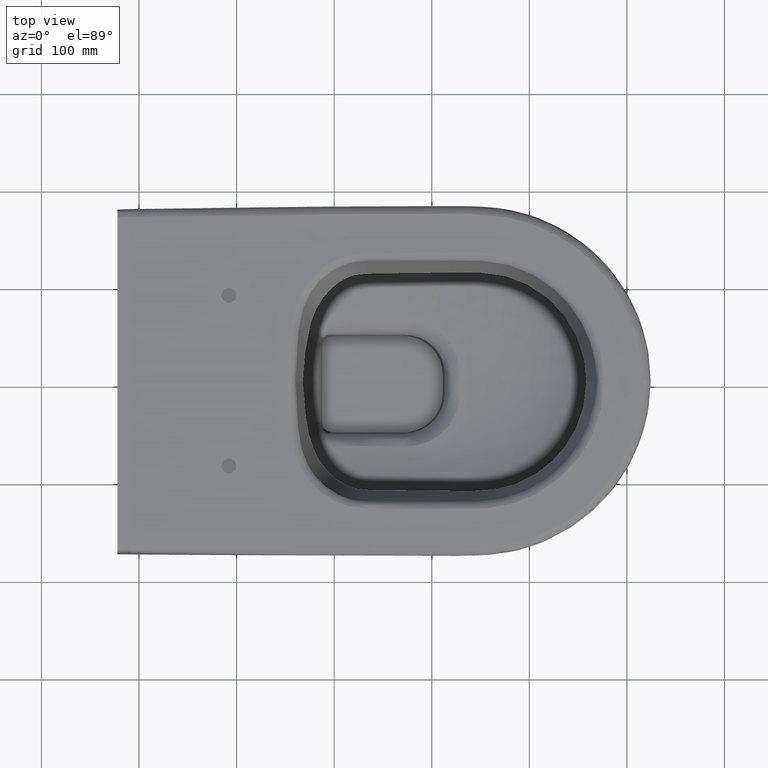
[diagram: clean part render]
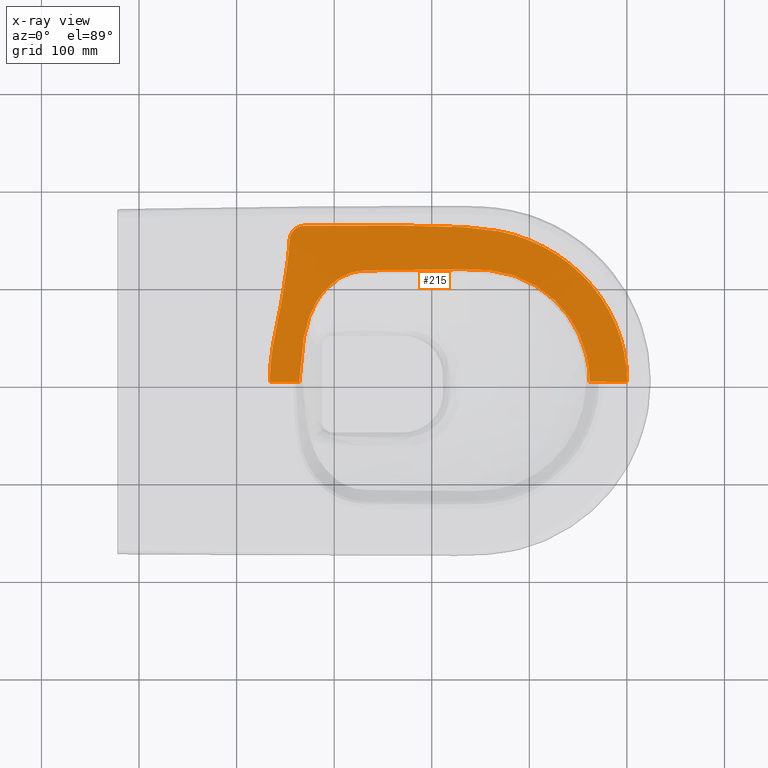
[diagram: x-ray — body ghosted, one internal face saturated and labeled with its STEP entity id]
A machine part, top view, then the same camera in x-ray: the body is ghosted and one INTERNAL B-rep face — a face not visible from any outside direction — is saturated and labeled: STEP entity #215.
In plain terms, the highlighted face is a freeform B-spline surface patch.
Its self-contained STEP definition (entity closure, byte-faithful):
#62=(
BOUNDED_CURVE()
B_SPLINE_CURVE(3,(#15350,#15351,#15352,#15353,#15354,#15355,#15356,#15357,
#15358,#15359,#15360,#15361,#15362,#15363,#15364,#15365,#15366,#15367,#15368,
#15369,#15370,#15371,#15372,#15373,#15374,#15375,#15376,#15377,#15378,#15379,
#15380,#15381,#15382,#15383),.UNSPECIFIED.,.F.,.F.)
B_SPLINE_CURVE_WITH_KNOTS((4,2,2,2,2,2,2,2,2,2,2,2,2,2,2,2,4),(0.,0.251503604023418,
0.314379505029272,0.377255406035127,0.440131307040981,0.471569257543909,
0.503007208046836,0.56588310905269,0.628759010058545,0.660196960561472,
0.691634911064399,0.754510812070254,0.785948762573181,0.817386713076108,
0.880262614081963,0.943138515087817,1.),.UNSPECIFIED.)
CURVE()
GEOMETRIC_REPRESENTATION_ITEM()
RATIONAL_B_SPLINE_CURVE((1.,1.,1.,1.,1.,1.,1.,1.,1.,1.,1.,1.,1.,1.,1.,1.,
1.,1.,1.,1.,1.,1.,1.,1.,1.,1.,1.,1.,1.,1.,1.,1.,1.,1.))
REPRESENTATION_ITEM('')
);
#109=B_SPLINE_SURFACE_WITH_KNOTS('',3,3,((#15446,#15447,#15448,#15449,#15450,
#15451,#15452,#15453,#15454,#15455),(#15456,#15457,#15458,#15459,#15460,
#15461,#15462,#15463,#15464,#15465),(#15466,#15467,#15468,#15469,#15470,
#15471,#15472,#15473,#15474,#15475),(#15476,#15477,#15478,#15479,#15480,
#15481,#15482,#15483,#15484,#15485),(#15486,#15487,#15488,#15489,#15490,
#15491,#15492,#15493,#15494,#15495),(#15496,#15497,#15498,#15499,#15500,
#15501,#15502,#15503,#15504,#15505),(#15506,#15507,#15508,#15509,#15510,
#15511,#15512,#15513,#15514,#15515),(#15516,#15517,#15518,#15519,#15520,
#15521,#15522,#15523,#15524,#15525),(#15526,#15527,#15528,#15529,#15530,
#15531,#15532,#15533,#15534,#15535),(#15536,#15537,#15538,#15539,#15540,
#15541,#15542,#15543,#15544,#15545),(#15546,#15547,#15548,#15549,#15550,
#15551,#15552,#15553,#15554,#15555),(#15556,#15557,#15558,#15559,#15560,
#15561,#15562,#15563,#15564,#15565),(#15566,#15567,#15568,#15569,#15570,
#15571,#15572,#15573,#15574,#15575),(#15576,#15577,#15578,#15579,#15580,
#15581,#15582,#15583,#15584,#15585),(#15586,#15587,#15588,#15589,#15590,
#15591,#15592,#15593,#15594,#15595),(#15596,#15597,#15598,#15599,#15600,
#15601,#15602,#15603,#15604,#15605),(#15606,#15607,#15608,#15609,#15610,
#15611,#15612,#15613,#15614,#15615),(#15616,#15617,#15618,#15619,#15620,
#15621,#15622,#15623,#15624,#15625),(#15626,#15627,#15628,#15629,#15630,
#15631,#15632,#15633,#15634,#15635),(#15636,#15637,#15638,#15639,#15640,
#15641,#15642,#15643,#15644,#15645),(#15646,#15647,#15648,#15649,#15650,
#15651,#15652,#15653,#15654,#15655),(#15656,#15657,#15658,#15659,#15660,
#15661,#15662,#15663,#15664,#15665),(#15666,#15667,#15668,#15669,#15670,
#15671,#15672,#15673,#15674,#15675),(#15676,#15677,#15678,#15679,#15680,
#15681,#15682,#15683,#15684,#15685),(#15686,#15687,#15688,#15689,#15690,
#15691,#15692,#15693,#15694,#15695),(#15696,#15697,#15698,#15699,#15700,
#15701,#15702,#15703,#15704,#15705),(#15706,#15707,#15708,#15709,#15710,
#15711,#15712,#15713,#15714,#15715),(#15716,#15717,#15718,#15719,#15720,
#15721,#15722,#15723,#15724,#15725),(#15726,#15727,#15728,#15729,#15730,
#15731,#15732,#15733,#15734,#15735),(#15736,#15737,#15738,#15739,#15740,
#15741,#15742,#15743,#15744,#15745),(#15746,#15747,#15748,#15749,#15750,
#15751,#15752,#15753,#15754,#15755),(#15756,#15757,#15758,#15759,#15760,
#15761,#15762,#15763,#15764,#15765),(#15766,#15767,#15768,#15769,#15770,
#15771,#15772,#15773,#15774,#15775),(#15776,#15777,#15778,#15779,#15780,
#15781,#15782,#15783,#15784,#15785),(#15786,#15787,#15788,#15789,#15790,
#15791,#15792,#15793,#15794,#15795),(#15796,#15797,#15798,#15799,#15800,
#15801,#15802,#15803,#15804,#15805),(#15806,#15807,#15808,#15809,#15810,
#15811,#15812,#15813,#15814,#15815),(#15816,#15817,#15818,#15819,#15820,
#15821,#15822,#15823,#15824,#15825),(#15826,#15827,#15828,#15829,#15830,
#15831,#15832,#15833,#15834,#15835),(#15836,#15837,#15838,#15839,#15840,
#15841,#15842,#15843,#15844,#15845),(#15846,#15847,#15848,#15849,#15850,
#15851,#15852,#15853,#15854,#15855),(#15856,#15857,#15858,#15859,#15860,
#15861,#15862,#15863,#15864,#15865),(#15866,#15867,#15868,#15869,#15870,
#15871,#15872,#15873,#15874,#15875),(#15876,#15877,#15878,#15879,#15880,
#15881,#15882,#15883,#15884,#15885),(#15886,#15887,#15888,#15889,#15890,
#15891,#15892,#15893,#15894,#15895),(#15896,#15897,#15898,#15899,#15900,
#15901,#15902,#15903,#15904,#15905),(#15906,#15907,#15908,#15909,#15910,
#15911,#15912,#15913,#15914,#15915),(#15916,#15917,#15918,#15919,#15920,
#15921,#15922,#15923,#15924,#15925),(#15926,#15927,#15928,#15929,#15930,
#15931,#15932,#15933,#15934,#15935),(#15936,#15937,#15938,#15939,#15940,
#15941,#15942,#15943,#15944,#15945),(#15946,#15947,#15948,#15949,#15950,
#15951,#15952,#15953,#15954,#15955),(#15956,#15957,#15958,#15959,#15960,
#15961,#15962,#15963,#15964,#15965),(#15966,#15967,#15968,#15969,#15970,
#15971,#15972,#15973,#15974,#15975),(#15976,#15977,#15978,#15979,#15980,
#15981,#15982,#15983,#15984,#15985),(#15986,#15987,#15988,#15989,#15990,
#15991,#15992,#15993,#15994,#15995),(#15996,#15997,#15998,#15999,#16000,
#16001,#16002,#16003,#16004,#16005)),.UNSPECIFIED.,.F.,.F.,.F.,(4,2,2,2,
2,2,2,2,2,2,2,2,2,2,2,2,2,2,2,2,2,2,2,2,2,2,2,4),(4,3,3,4),(0.,0.0625,0.09375,
0.125,0.15625,0.1875,0.25,0.28125,0.3125,0.3203125,0.328125,0.34375,0.375,
0.5,0.5625,0.59375,0.625,0.65625,0.6875,0.75,0.78125,0.8125,0.875,0.90625,
0.9375,0.96875,0.984375,1.),(0.,0.88316741575458,0.941642529238111,1.),
 .UNSPECIFIED.);
#215=ADVANCED_FACE('',(#293),#109,.F.);
#293=FACE_OUTER_BOUND('',#372,.T.);
#372=EDGE_LOOP('',(#721,#722,#723,#724,#725,#726,#727));
#721=ORIENTED_EDGE('',*,*,#1016,.F.);
#722=ORIENTED_EDGE('',*,*,#1105,.F.);
#723=ORIENTED_EDGE('',*,*,#1106,.F.);
#724=ORIENTED_EDGE('',*,*,#1019,.F.);
#725=ORIENTED_EDGE('',*,*,#1093,.T.);
#726=ORIENTED_EDGE('',*,*,#1107,.F.);
#727=ORIENTED_EDGE('',*,*,#1108,.F.);
#845=VERTEX_POINT('',#3459);
#868=VERTEX_POINT('',#6172);
#869=VERTEX_POINT('',#6173);
#871=VERTEX_POINT('',#6229);
#914=VERTEX_POINT('',#13129);
#919=VERTEX_POINT('',#15384);
#920=VERTEX_POINT('',#15415);
#1016=EDGE_CURVE('',#868,#869,#1196,.T.);
#1019=EDGE_CURVE('',#845,#871,#1199,.T.);
#1093=EDGE_CURVE('',#845,#914,#1254,.T.);
#1105=EDGE_CURVE('',#919,#868,#62,.T.);
#1106=EDGE_CURVE('',#871,#919,#1260,.T.);
#1107=EDGE_CURVE('',#920,#914,#1261,.T.);
#1108=EDGE_CURVE('',#869,#920,#1262,.T.);
#1196=B_SPLINE_CURVE_WITH_KNOTS('',3,(#6154,#6155,#6156,#6157,#6158,#6159,
#6160,#6161,#6162,#6163,#6164,#6165,#6166,#6167,#6168,#6169,#6170,#6171),
 .UNSPECIFIED.,.F.,.F.,(4,3,3,2,3,3,4),(0.,0.115384615384615,0.20414201183432,
0.541644777999624,0.79585798816568,0.884615384615385,1.),.UNSPECIFIED.);
#1199=B_SPLINE_CURVE_WITH_KNOTS('',3,(#6211,#6212,#6213,#6214,#6215,#6216,
#6217,#6218,#6219,#6220,#6221,#6222,#6223,#6224,#6225,#6226,#6227,#6228),
 .UNSPECIFIED.,.F.,.F.,(4,3,3,2,3,3,4),(0.,0.115384615384615,0.20414201183432,
0.493718662371066,0.79585798816568,0.884615384615385,1.),.UNSPECIFIED.);
#1254=B_SPLINE_CURVE_WITH_KNOTS('',3,(#13130,#13131,#13132,#13133,#13134,
#13135,#13136,#13137,#13138,#13139,#13140,#13141,#13142,#13143,#13144,#13145),
 .UNSPECIFIED.,.F.,.F.,(4,2,2,2,2,2,2,4),(0.,0.25,0.375,0.5,0.625,0.75,
0.875,1.),.UNSPECIFIED.);
#1260=B_SPLINE_CURVE_WITH_KNOTS('',3,(#15385,#15386,#15387,#15388,#15389,
#15390,#15391,#15392,#15393,#15394,#15395,#15396,#15397,#15398,#15399,#15400,
#15401,#15402,#15403,#15404,#15405,#15406,#15407,#15408),.UNSPECIFIED.,
 .F.,.F.,(4,2,2,2,2,2,2,2,2,2,2,4),(0.,0.25,0.375,0.499999999999999,0.5625,
0.625,0.6875,0.75,0.8125,0.875,0.9375,1.),.UNSPECIFIED.);
#1261=B_SPLINE_CURVE_WITH_KNOTS('',3,(#15409,#15410,#15411,#15412,#15413,
#15414),.UNSPECIFIED.,.F.,.F.,(4,2,4),(0.,0.5,1.),.UNSPECIFIED.);
#1262=B_SPLINE_CURVE_WITH_KNOTS('',3,(#15416,#15417,#15418,#15419,#15420,
#15421,#15422,#15423,#15424,#15425,#15426,#15427,#15428,#15429,#15430,#15431,
#15432,#15433,#15434,#15435,#15436,#15437,#15438,#15439,#15440,#15441,#15442,
#15443,#15444,#15445),.UNSPECIFIED.,.F.,.F.,(4,2,2,2,2,2,2,2,2,2,2,2,2,
2,4),(0.,0.0625,0.125,0.1875,0.25,0.3125,0.375,0.4375,0.5,0.625,0.6875,
0.75,0.875,0.9375,1.),.UNSPECIFIED.);
#3459=CARTESIAN_POINT('',(133.981603169878,-1.46156223209168E-12,-61.8724775054971));
#6154=CARTESIAN_POINT('',(450.177745465611,7.57622266924505E-14,-47.9961749465529));
#6155=CARTESIAN_POINT('',(452.381173468565,7.57622266924505E-14,-48.1909007817974));
#6156=CARTESIAN_POINT('',(454.584601471519,7.57622266924505E-14,-48.3856266170418));
#6157=CARTESIAN_POINT('',(456.788029474474,7.57622266924505E-14,-48.5803524522862));
#6158=CARTESIAN_POINT('',(458.482974092131,7.57622266924505E-14,-48.7301415563204));
#6159=CARTESIAN_POINT('',(460.177918709788,7.57622266924505E-14,-48.8799306603546));
#6160=CARTESIAN_POINT('',(461.872863327445,7.57622266924505E-14,-49.0297197643888));
#6161=CARTESIAN_POINT('',(468.317943059819,7.57622266924505E-14,-49.5992975007255));
#6162=CARTESIAN_POINT('',(474.763022792489,-1.13265245706845E-14,-50.1688752337152));
#6163=CARTESIAN_POINT('',(486.062653577655,-1.13265245706845E-14,-51.1674692517205));
#6164=CARTESIAN_POINT('',(490.917204630089,-8.39108954032736E-14,-51.5964855374469));
#6165=CARTESIAN_POINT('',(495.771755682584,-8.39108954032736E-14,-52.0255018224822));
#6166=CARTESIAN_POINT('',(497.466700300412,-8.39108954032736E-14,-52.1752909245882));
#6167=CARTESIAN_POINT('',(499.161644918239,-8.39108954032736E-14,-52.3250800266942));
#6168=CARTESIAN_POINT('',(500.856589536067,-8.39108954032736E-14,-52.4748691288002));
#6169=CARTESIAN_POINT('',(503.060017539243,-8.39108954032736E-14,-52.669594961538));
#6170=CARTESIAN_POINT('',(505.263445542419,-8.39108954032736E-14,-52.8643207942758));
#6171=CARTESIAN_POINT('',(507.466873545594,-8.39108954032736E-14,-53.0590466270136));
#6172=CARTESIAN_POINT('',(461.872306282295,4.33229251016771E-7,-49.030005531108));
#6173=CARTESIAN_POINT('',(500.272433144328,0.,-52.4233294735798));
#6211=CARTESIAN_POINT('',(130.150190288609,1.08626588044995E-12,-62.2110686089655));
#6212=CARTESIAN_POINT('',(131.795357319102,1.08626588044995E-12,-62.0656812708091));
#6213=CARTESIAN_POINT('',(133.440524349596,1.08626588044995E-12,-61.9202939326526));
#6214=CARTESIAN_POINT('',(135.08569138009,1.08626588044995E-12,-61.7749065944962));
#6215=CARTESIAN_POINT('',(136.35120448047,1.08626588044995E-12,-61.6630701805298));
#6216=CARTESIAN_POINT('',(137.616717580849,1.08626588044995E-12,-61.5512337665633));
#6217=CARTESIAN_POINT('',(138.882230681229,1.08626588044995E-12,-61.4393973525968));
#6218=CARTESIAN_POINT('',(143.011047652849,1.08626588044995E-12,-61.0745239396773));
#6219=CARTESIAN_POINT('',(147.13986462447,1.41952175244824E-12,-60.7096505267578));
#6220=CARTESIAN_POINT('',(155.576618627003,1.41952175244824E-12,-59.9640744336482));
#6221=CARTESIAN_POINT('',(159.884555657916,9.05319484867722E-13,-59.583371753458));
#6222=CARTESIAN_POINT('',(164.192492688828,9.05319484867722E-13,-59.2026690732678));
#6223=CARTESIAN_POINT('',(165.458005789208,9.05319484867722E-13,-59.0908326593014));
#6224=CARTESIAN_POINT('',(166.723518889588,9.05319484867722E-13,-58.9789962453349));
#6225=CARTESIAN_POINT('',(167.989031989968,9.05319484867722E-13,-58.8671598313685));
#6226=CARTESIAN_POINT('',(169.634199020461,9.05319484867722E-13,-58.7217724932121));
#6227=CARTESIAN_POINT('',(171.279366050955,9.05319484867722E-13,-58.5763851550557));
#6228=CARTESIAN_POINT('',(172.924533081449,9.05319484867722E-13,-58.4309978168994));
#6229=CARTESIAN_POINT('',(164.192492688812,-6.85374892285888E-14,-59.2026690730886));
#13129=CARTESIAN_POINT('',(154.332140645237,146.128464908098,-62.727050664204));
#13130=CARTESIAN_POINT('',(133.981603171689,7.52891212390974E-13,-61.8724775053725));
#13131=CARTESIAN_POINT('',(133.981603171731,12.3888357172841,-61.8724775053698));
#13132=CARTESIAN_POINT('',(135.054700914793,24.6400660773289,-61.7776452959022));
#13133=CARTESIAN_POINT('',(138.180705123229,42.8224662094551,-61.5013928409807));
#13134=CARTESIAN_POINT('',(139.337203486572,48.8685840912626,-61.399190319587));
#13135=CARTESIAN_POINT('',(141.727700353688,60.9508818649982,-61.1879364043722));
#13136=CARTESIAN_POINT('',(143.018335861515,66.9780568530219,-61.0574871453678));
#13137=CARTESIAN_POINT('',(145.424080248725,79.061414449264,-60.9296877570846));
#13138=CARTESIAN_POINT('',(146.471143726214,85.1309579121908,-60.9291165949745));
#13139=CARTESIAN_POINT('',(148.541804674364,97.274128534275,-61.0172116324564));
#13140=CARTESIAN_POINT('',(149.545486696588,103.35132568007,-61.1080947918189));
#13141=CARTESIAN_POINT('',(151.371539420742,115.538106877104,-61.3908072558053));
#13142=CARTESIAN_POINT('',(152.179374290009,121.639347873393,-61.5833387973119));
#13143=CARTESIAN_POINT('',(153.422915580464,133.871535699461,-62.0797438097208));
#13144=CARTESIAN_POINT('',(153.898213579542,139.999016748434,-62.3807547388685));
#13145=CARTESIAN_POINT('',(154.332255415033,146.128296567135,-62.7270341507854));
#15350=CARTESIAN_POINT('',(234.276168320142,114.282111420144,-56.8584473894305));
#15351=CARTESIAN_POINT('',(259.005456909698,114.627960351665,-56.0322992095631));
#15352=CARTESIAN_POINT('',(283.737096440742,114.988340584999,-55.2088647162481));
#15353=CARTESIAN_POINT('',(314.649333653689,115.393387514407,-54.1683426783558));
#15354=CARTESIAN_POINT('',(320.8313189273,115.462583465693,-53.9590708490787));
#15355=CARTESIAN_POINT('',(333.194862495586,115.520937681368,-53.5365925403051));
#15356=CARTESIAN_POINT('',(339.384238989448,115.547387460469,-53.3255647471158));
#15357=CARTESIAN_POINT('',(351.697702156786,115.164765448196,-52.8970101026336));
#15358=CARTESIAN_POINT('',(357.816060600627,114.750429397478,-52.6815296565188));
#15359=CARTESIAN_POINT('',(366.906447136143,113.50061148929,-52.3724371628919));
#15360=CARTESIAN_POINT('',(369.921621797028,112.976915926445,-52.2709965999689));
#15361=CARTESIAN_POINT('',(375.915229375892,111.638818459297,-52.0662722171677));
#15362=CARTESIAN_POINT('',(378.904642966097,110.828778839527,-51.9630662778478));
#15363=CARTESIAN_POINT('',(387.758886808366,108.020450304587,-51.6559683055121));
#15364=CARTESIAN_POINT('',(393.405754315116,105.662391022587,-51.4558972054004));
#15365=CARTESIAN_POINT('',(404.269459040077,100.129065984222,-51.0768128305692));
#15366=CARTESIAN_POINT('',(409.478076902946,96.9368240223512,-50.8957748028251));
#15367=CARTESIAN_POINT('',(416.942517084866,91.4871095998169,-50.6315193828788));
#15368=CARTESIAN_POINT('',(419.380523698414,89.5531033756422,-50.5446091537245));
#15369=CARTESIAN_POINT('',(424.052752208158,85.5309314924895,-50.3779660221292));
#15370=CARTESIAN_POINT('',(426.295203732373,83.4357094769672,-50.2979332027611));
#15371=CARTESIAN_POINT('',(432.749811265201,76.9027001488715,-50.0684343882181));
#15372=CARTESIAN_POINT('',(436.696451851208,72.2231626191034,-49.9300538371797));
#15373=CARTESIAN_POINT('',(442.07898859806,64.7173831704326,-49.7390083065504));
#15374=CARTESIAN_POINT('',(443.789525791153,62.1210642397607,-49.6779427936457));
#15375=CARTESIAN_POINT('',(446.972601319865,56.8305722821464,-49.5633418889382));
#15376=CARTESIAN_POINT('',(448.447508133808,54.1363720570039,-49.5097650628526));
#15377=CARTESIAN_POINT('',(452.532141081645,45.9114467661792,-49.3626967834927));
#15378=CARTESIAN_POINT('',(454.80481984778,40.2373432571283,-49.2833796040344));
#15379=CARTESIAN_POINT('',(458.44585968574,28.5042314150964,-49.1531460897778));
#15380=CARTESIAN_POINT('',(459.821077578441,22.4101087051208,-49.102422818169));
#15381=CARTESIAN_POINT('',(461.484195371256,10.9170158567151,-49.0428476184234));
#15382=CARTESIAN_POINT('',(461.867088644906,5.46543318264528,-49.0367890407327));
#15383=CARTESIAN_POINT('',(461.871901126379,-7.81074197507559E-7,-49.0303198363131));
#15384=CARTESIAN_POINT('',(234.276168320142,114.282111420144,-56.8584473894305));
#15385=CARTESIAN_POINT('',(164.192492688802,1.24301466450488E-12,-59.2026690729692));
#15386=CARTESIAN_POINT('',(164.882481749474,12.5011742242617,-59.1416930924461));
#15387=CARTESIAN_POINT('',(165.795753135881,24.9834682169075,-59.0609851197282));
#15388=CARTESIAN_POINT('',(168.46473200571,43.5947425612909,-58.8251210851379));
#15389=CARTESIAN_POINT('',(169.49749924928,49.844659814381,-58.7256198002109));
#15390=CARTESIAN_POINT('',(172.547545192973,61.8913516116376,-58.4747032087598));
#15391=CARTESIAN_POINT('',(174.548027116603,67.7537170052208,-58.3652819279311));
#15392=CARTESIAN_POINT('',(178.385823498493,76.2728797096802,-58.2054341155128));
#15393=CARTESIAN_POINT('',(179.812883486396,79.08223747742,-58.1528717022945));
#15394=CARTESIAN_POINT('',(182.995543191076,84.4665884579748,-58.0439947657345));
#15395=CARTESIAN_POINT('',(184.768446175758,87.011469970057,-57.9852764519197));
#15396=CARTESIAN_POINT('',(188.609760936632,91.8600644258356,-57.8657817158455));
#15397=CARTESIAN_POINT('',(190.656968586748,94.179174614956,-57.8071069679044));
#15398=CARTESIAN_POINT('',(194.997146420076,98.6223455083929,-57.6966798114857));
#15399=CARTESIAN_POINT('',(197.321899067289,100.746517760986,-57.643222216141));
#15400=CARTESIAN_POINT('',(202.232709707508,104.563705262965,-57.5358194046776));
#15401=CARTESIAN_POINT('',(204.818829834616,106.256502974246,-57.4812913098924));
#15402=CARTESIAN_POINT('',(210.242452703298,109.22246300622,-57.375935758237));
#15403=CARTESIAN_POINT('',(213.076820543702,110.581697761825,-57.3317870756542));
#15404=CARTESIAN_POINT('',(218.9515296675,112.562925900249,-57.2345967911108));
#15405=CARTESIAN_POINT('',(221.958932250043,113.184594198142,-57.1894117566557));
#15406=CARTESIAN_POINT('',(228.055327897485,114.101001966906,-57.0574507428729));
#15407=CARTESIAN_POINT('',(231.158063177932,114.238502432484,-56.9626159556061));
#15408=CARTESIAN_POINT('',(234.276168114404,114.282111417267,-56.8584473963037));
#15409=CARTESIAN_POINT('',(169.28853843182,160.266600599074,-63.0090662225787));
#15410=CARTESIAN_POINT('',(165.489987318485,160.204979602771,-63.1482768284884));
#15411=CARTESIAN_POINT('',(161.797822168427,158.694435506631,-63.1868337320484));
#15412=CARTESIAN_POINT('',(156.319809786756,153.521339492426,-63.0829959586446));
#15413=CARTESIAN_POINT('',(154.600035052034,149.914884298374,-62.940981595337));
#15414=CARTESIAN_POINT('',(154.332025874208,146.128633251884,-62.7270671613704));
#15415=CARTESIAN_POINT('',(169.286316410782,160.266288459396,-63.009124452124));
#15416=CARTESIAN_POINT('',(500.273090436643,1.16944243869439E-9,-52.4233007695555));
#15417=CARTESIAN_POINT('',(500.276931404671,8.78554163160256,-52.4282535244285));
#15418=CARTESIAN_POINT('',(499.51265477165,17.4575877894955,-52.449265458022));
#15419=CARTESIAN_POINT('',(496.51884836642,34.5850071906268,-52.5544521126295));
#15420=CARTESIAN_POINT('',(494.276571835347,43.1036989488606,-52.6320136850285));
#15421=CARTESIAN_POINT('',(488.364213840789,59.6242040239223,-52.8348349106422));
#15422=CARTESIAN_POINT('',(484.728570809173,67.5279120693674,-52.9625272929255));
#15423=CARTESIAN_POINT('',(476.154122061736,82.6515518746599,-53.2655862585763));
#15424=CARTESIAN_POINT('',(471.171674033637,89.9249418130958,-53.439556918311));
#15425=CARTESIAN_POINT('',(460.098104744656,103.514671604567,-53.8302381478457));
#15426=CARTESIAN_POINT('',(454.063095277823,109.786687405535,-54.0506823055377));
#15427=CARTESIAN_POINT('',(441.049143216287,121.340219925907,-54.5368775903744));
#15428=CARTESIAN_POINT('',(434.009218771434,126.657074078348,-54.8014909793393));
#15429=CARTESIAN_POINT('',(419.241960335807,136.061397087839,-55.3701692472686));
#15430=CARTESIAN_POINT('',(411.560425511171,140.129323391387,-55.6725468218856));
#15431=CARTESIAN_POINT('',(395.627056547953,147.050386087291,-56.319221783869));
#15432=CARTESIAN_POINT('',(387.332751264639,149.911588015429,-56.6705172488994));
#15433=CARTESIAN_POINT('',(361.880392956531,156.609593786482,-57.7688528560064));
#15434=CARTESIAN_POINT('',(344.475644292428,158.237627227631,-58.443980642807));
#15435=CARTESIAN_POINT('',(318.215903474604,159.426251656935,-59.2254279925777));
#15436=CARTESIAN_POINT('',(309.457500935832,159.650368064091,-59.4666189434176));
#15437=CARTESIAN_POINT('',(291.938420676487,160.026821368019,-59.9364104714527));
#15438=CARTESIAN_POINT('',(283.177692641901,160.184141017567,-60.1659427270742));
#15439=CARTESIAN_POINT('',(256.89439520735,160.573548984965,-60.8415830090703));
#15440=CARTESIAN_POINT('',(239.371919822983,160.7097487968,-61.2731446088834));
#15441=CARTESIAN_POINT('',(213.087961216297,160.699028713627,-61.8965040977214));
#15442=CARTESIAN_POINT('',(204.326596960552,160.659364102492,-62.1001336530747));
#15443=CARTESIAN_POINT('',(186.803807283247,160.512789665346,-62.5004774794469));
#15444=CARTESIAN_POINT('',(178.042137383195,160.408073236844,-62.6881851581098));
#15445=CARTESIAN_POINT('',(169.284094641934,160.265976108578,-63.0091846914595));
#15446=CARTESIAN_POINT('',(173.862891570659,4.32822016051639E-13,-58.348072836971));
#15447=CARTESIAN_POINT('',(152.598233889756,7.83638796930405E-13,-60.2272814034741));
#15448=CARTESIAN_POINT('',(131.333576208853,6.63978539710451E-13,-62.1064899699777));
#15449=CARTESIAN_POINT('',(110.068918527951,6.79024096821035E-13,-63.9856985364813));
#15450=CARTESIAN_POINT('',(108.660971123079,6.80020273359899E-13,-64.1101222099834));
#15451=CARTESIAN_POINT('',(107.253023718207,6.81016449898764E-13,-64.2345458834854));
#15452=CARTESIAN_POINT('',(105.845076313335,6.82012626437629E-13,-64.3589695569875));
#15453=CARTESIAN_POINT('',(104.439961476966,6.83006798826141E-13,-64.4831429096485));
#15454=CARTESIAN_POINT('',(103.034846640596,6.84000971214654E-13,-64.6073162623096));
#15455=CARTESIAN_POINT('',(101.629731804227,6.84995143603166E-13,-64.7314896149706));
#15456=CARTESIAN_POINT('',(173.862891570671,8.86229056803603,-58.3480728369705));
#15457=CARTESIAN_POINT('',(152.59823388977,10.2922925026579,-60.2272814034736));
#15458=CARTESIAN_POINT('',(131.33357620887,11.7226544757625,-62.1064899699772));
#15459=CARTESIAN_POINT('',(110.068918527969,13.1531611422508,-63.9856985364808));
#15460=CARTESIAN_POINT('',(108.660971123097,13.2478759586827,-64.1101222099829));
#15461=CARTESIAN_POINT('',(107.253023718225,13.3425907751146,-64.2345458834849));
#15462=CARTESIAN_POINT('',(105.845076313353,13.4373055915466,-64.358969556987));
#15463=CARTESIAN_POINT('',(104.439961476984,13.5318298566803,-64.483142909648));
#15464=CARTESIAN_POINT('',(103.034846640614,13.6263541218141,-64.6073162623091));
#15465=CARTESIAN_POINT('',(101.629731804245,13.7208783869478,-64.7314896149701));
#15466=CARTESIAN_POINT('',(173.862891570684,17.7245811351982,-58.3480728369706));
#15467=CARTESIAN_POINT('',(152.598233889784,20.5845850043054,-60.2272814034714));
#15468=CARTESIAN_POINT('',(131.333576208886,23.4453089503715,-62.1064899699759));
#15469=CARTESIAN_POINT('',(110.068918527987,26.3063222832064,-63.9856985364802));
#15470=CARTESIAN_POINT('',(108.660971123115,26.4957519160609,-64.1101222099823));
#15471=CARTESIAN_POINT('',(107.253023718243,26.6851815489153,-64.2345458834845));
#15472=CARTESIAN_POINT('',(105.845076313372,26.8746111817698,-64.3589695569866));
#15473=CARTESIAN_POINT('',(104.439961477002,27.0636597120279,-64.4831429096477));
#15474=CARTESIAN_POINT('',(103.034846640633,27.2527082422861,-64.6073162623088));
#15475=CARTESIAN_POINT('',(101.629731804264,27.4417567725442,-64.7314896149698));
#15476=CARTESIAN_POINT('',(173.862891570704,31.0180169872532,-58.3480728369705));
#15477=CARTESIAN_POINT('',(152.598233889805,36.0230237582948,-60.2272814034692));
#15478=CARTESIAN_POINT('',(131.33357620891,41.0292906640178,-62.1064899699743));
#15479=CARTESIAN_POINT('',(110.068918528014,46.0360639965851,-63.9856985364794));
#15480=CARTESIAN_POINT('',(108.660971123142,46.3675658540874,-64.1101222099816));
#15481=CARTESIAN_POINT('',(107.253023718271,46.6990677115898,-64.2345458834838));
#15482=CARTESIAN_POINT('',(105.845076313399,47.0305695690921,-64.3589695569859));
#15483=CARTESIAN_POINT('',(104.43996147703,47.3614044970509,-64.4831429096471));
#15484=CARTESIAN_POINT('',(103.034846640661,47.6922394250097,-64.6073162623082));
#15485=CARTESIAN_POINT('',(101.629731804292,48.0230743529685,-64.7314896149694));
#15486=CARTESIAN_POINT('',(173.862891570711,35.4428495966322,-58.3480728369705));
#15487=CARTESIAN_POINT('',(152.598233889811,41.1618387341079,-60.2272814034679));
#15488=CARTESIAN_POINT('',(131.333576208917,46.8822677690478,-62.1064899699738));
#15489=CARTESIAN_POINT('',(110.068918528023,52.6032754744578,-63.9856985364792));
#15490=CARTESIAN_POINT('',(108.660971123152,52.982067274117,-64.1101222099814));
#15491=CARTESIAN_POINT('',(107.25302371828,53.3608590737761,-64.2345458834836));
#15492=CARTESIAN_POINT('',(105.845076313409,53.7396508734353,-64.3589695569858));
#15493=CARTESIAN_POINT('',(104.43996147704,54.1176806036329,-64.4831429096469));
#15494=CARTESIAN_POINT('',(103.034846640671,54.4957103338304,-64.6073162623081));
#15495=CARTESIAN_POINT('',(101.629731804302,54.873740064028,-64.7314896149693));
#15496=CARTESIAN_POINT('',(173.862891570724,44.3048173891968,-58.3480728369704));
#15497=CARTESIAN_POINT('',(152.598233889824,51.4537563788761,-60.2272814034664));
#15498=CARTESIAN_POINT('',(131.333576208933,58.6044952913853,-62.1064899699729));
#15499=CARTESIAN_POINT('',(110.068918528041,65.7559575624793,-63.9856985364787));
#15500=CARTESIAN_POINT('',(108.66097112317,66.2294607289408,-64.1101222099809));
#15501=CARTESIAN_POINT('',(107.253023718298,66.7029638954023,-64.2345458834832));
#15502=CARTESIAN_POINT('',(105.845076313427,67.1764670618638,-64.3589695569854));
#15503=CARTESIAN_POINT('',(104.439961477058,67.6490176145057,-64.4831429096466));
#15504=CARTESIAN_POINT('',(103.034846640689,68.1215681671476,-64.6073162623077));
#15505=CARTESIAN_POINT('',(101.629731804321,68.5941187197894,-64.7314896149689));
#15506=CARTESIAN_POINT('',(173.857819363579,48.7292891705587,-58.348521080029));
#15507=CARTESIAN_POINT('',(152.592518337215,56.5925894532944,-60.2277865005007));
#15508=CARTESIAN_POINT('',(131.327495516243,64.4585689369969,-62.1070273353085));
#15509=CARTESIAN_POINT('',(110.062547047152,72.3255265833814,-63.9862615994627));
#15510=CARTESIAN_POINT('',(108.654580388997,72.8464031838269,-64.1106869744237));
#15511=CARTESIAN_POINT('',(107.246613730842,73.3672797842724,-64.2351123493846));
#15512=CARTESIAN_POINT('',(105.838647072686,73.8881563847178,-64.3595377243456));
#15513=CARTESIAN_POINT('',(104.433513021768,74.4079850634533,-64.4837127750424));
#15514=CARTESIAN_POINT('',(103.02837897085,74.9278137421887,-64.6078878257392));
#15515=CARTESIAN_POINT('',(101.623244919932,75.4476424209242,-64.7320628764361));
#15516=CARTESIAN_POINT('',(173.867963777891,57.6661168374654,-58.3476245939118));
#15517=CARTESIAN_POINT('',(152.603949442467,66.9705719175887,-60.2267763064311));
#15518=CARTESIAN_POINT('',(131.339656901657,76.2766702052572,-62.1059526046359));
#15519=CARTESIAN_POINT('',(110.075290008964,85.5835274332252,-63.9851354734939));
#15520=CARTESIAN_POINT('',(108.667361857376,86.1997407613805,-64.1095574455374));
#15521=CARTESIAN_POINT('',(107.259433705789,86.8159540895358,-64.233979417581));
#15522=CARTESIAN_POINT('',(105.851505554201,87.4321674176911,-64.3584013896245));
#15523=CARTESIAN_POINT('',(104.446409932382,88.0471410216506,-64.4825730442501));
#15524=CARTESIAN_POINT('',(103.041314310562,88.6621146256101,-64.6067446988757));
#15525=CARTESIAN_POINT('',(101.636218688743,89.2770882295697,-64.7309163535012));
#15526=CARTESIAN_POINT('',(174.42888657466,62.1795557262776,-58.3264647947641));
#15527=CARTESIAN_POINT('',(153.2551117563,72.2103931085937,-60.2058269749135));
#15528=CARTESIAN_POINT('',(132.079901288797,82.2405708514834,-62.0852998838306));
#15529=CARTESIAN_POINT('',(110.904154805411,92.2705933308917,-63.9648108499084));
#15530=CARTESIAN_POINT('',(109.502094271218,92.9346879207319,-64.0892545454913));
#15531=CARTESIAN_POINT('',(108.100033737026,93.5987825105721,-64.2136982410743));
#15532=CARTESIAN_POINT('',(106.697973202833,94.2628771004123,-64.3381419366572));
#15533=CARTESIAN_POINT('',(105.298733393686,94.9256356364969,-64.4623352711179));
#15534=CARTESIAN_POINT('',(103.899493584539,95.5883941725816,-64.5865286055785));
#15535=CARTESIAN_POINT('',(102.500253775391,96.2511527086662,-64.7107219400391));
#15536=CARTESIAN_POINT('',(176.614684704453,70.8572541157693,-58.2468685209951));
#15537=CARTESIAN_POINT('',(155.794452343483,82.2856257537541,-60.1277076820089));
#15538=CARTESIAN_POINT('',(134.97103422894,93.7108971178127,-62.00875559434));
#15539=CARTESIAN_POINT('',(114.146430275927,105.135132068036,-63.8898662966888));
#15540=CARTESIAN_POINT('',(112.767619126784,105.891538411001,-64.0144159118951));
#15541=CARTESIAN_POINT('',(111.388807977641,106.647944753966,-64.1389655271013));
#15542=CARTESIAN_POINT('',(110.009996828499,107.404351096931,-64.2635151423076));
#15543=CARTESIAN_POINT('',(108.633959630299,108.159235669428,-64.3878141832979));
#15544=CARTESIAN_POINT('',(107.2579224321,108.914120241924,-64.5121132242882));
#15545=CARTESIAN_POINT('',(105.881885233901,109.66900481442,-64.6364122652785));
#15546=CARTESIAN_POINT('',(178.242710209391,75.0425966237925,-58.1878913466784));
#15547=CARTESIAN_POINT('',(157.685980645257,87.1447620680904,-60.0699037012212));
#15548=CARTESIAN_POINT('',(137.125104036931,99.2427534662616,-61.9521697742929));
#15549=CARTESIAN_POINT('',(116.562684497463,111.339320826111,-63.8345070752268));
#15550=CARTESIAN_POINT('',(115.201232756131,112.140242753834,-63.9591379043571));
#15551=CARTESIAN_POINT('',(113.8397810148,112.941164681557,-64.0837687334875));
#15552=CARTESIAN_POINT('',(112.478329273468,113.74208660928,-64.2083995626178));
#15553=CARTESIAN_POINT('',(111.119616558685,114.541397208187,-64.3327796541426));
#15554=CARTESIAN_POINT('',(109.760903843901,115.340707807094,-64.4571597456674));
#15555=CARTESIAN_POINT('',(108.402191129118,116.140018406,-64.5815398371922));
#15556=CARTESIAN_POINT('',(184.589896812734,86.7648163465053,-57.9585091903907));
#15557=CARTESIAN_POINT('',(165.060226344368,100.752467205373,-59.8452329732659));
#15558=CARTESIAN_POINT('',(145.523280923132,114.733053570704,-61.7323301665942));
#15559=CARTESIAN_POINT('',(125.983636115459,128.711181310563,-63.6195122094813));
#15560=CARTESIAN_POINT('',(124.689902982675,129.636682626955,-63.7444638122616));
#15561=CARTESIAN_POINT('',(123.396169849892,130.562183943347,-63.869415415042));
#15562=CARTESIAN_POINT('',(122.102436717108,131.48768525974,-63.9943670178223));
#15563=CARTESIAN_POINT('',(120.811306371694,132.4113246132,-64.119067237651));
#15564=CARTESIAN_POINT('',(119.520176026281,133.33496396666,-64.2437674574797));
#15565=CARTESIAN_POINT('',(118.229045680867,134.258603320121,-64.3684676773084));
#15566=CARTESIAN_POINT('',(190.788010814424,93.4545890807938,-57.7349925089715));
#15567=CARTESIAN_POINT('',(172.261161039721,108.515972169718,-59.6264477606456));
#15568=CARTESIAN_POINT('',(153.724708284389,123.568929730711,-61.5183380438206));
#15569=CARTESIAN_POINT('',(135.184694429107,138.618944932007,-63.4103089107454));
#15570=CARTESIAN_POINT('',(133.957147539543,139.615416644081,-63.5355775848126));
#15571=CARTESIAN_POINT('',(132.729600649979,140.611888356154,-63.6608462588799));
#15572=CARTESIAN_POINT('',(131.502053760415,141.608360068228,-63.7861149329471));
#15573=CARTESIAN_POINT('',(130.27697650192,142.602827036108,-63.9111315861652));
#15574=CARTESIAN_POINT('',(129.051899243425,143.597294003987,-64.0361482393833));
#15575=CARTESIAN_POINT('',(127.82682198493,144.591760971867,-64.1611648926014));
#15576=CARTESIAN_POINT('',(202.027395020617,100.648672745655,-57.3313572016829));
#15577=CARTESIAN_POINT('',(185.315267625562,116.85750268007,-59.231680551298));
#15578=CARTESIAN_POINT('',(168.589822371989,133.056451257826,-61.1324254149026));
#15579=CARTESIAN_POINT('',(151.859450055921,149.25195541681,-63.0331996290435));
#15580=CARTESIAN_POINT('',(150.751720759808,150.324270729542,-63.1590511786996));
#15581=CARTESIAN_POINT('',(149.643991463695,151.396586042274,-63.2849027283556));
#15582=CARTESIAN_POINT('',(148.536262167582,152.468901355006,-63.4107542780117));
#15583=CARTESIAN_POINT('',(147.430761448405,153.539059338161,-63.5363526341647));
#15584=CARTESIAN_POINT('',(146.325260729228,154.609217321316,-63.6619509903177));
#15585=CARTESIAN_POINT('',(145.219760010051,155.67937530447,-63.7875493464707));
#15586=CARTESIAN_POINT('',(206.093224451114,102.575631054392,-57.1855825578202));
#15587=CARTESIAN_POINT('',(190.037049695514,119.09015269735,-59.0891539921915));
#15588=CARTESIAN_POINT('',(173.966295514653,135.594421381529,-60.9931242395684));
#15589=CARTESIAN_POINT('',(157.890150560606,152.095120234105,-62.897099323699));
#15590=CARTESIAN_POINT('',(156.825738101772,153.187642694456,-63.0231628051276));
#15591=CARTESIAN_POINT('',(155.761325642938,154.280165154807,-63.1492262865563));
#15592=CARTESIAN_POINT('',(154.696913184103,155.372687615158,-63.2752897679849));
#15593=CARTESIAN_POINT('',(153.634642155549,156.463012092332,-63.4010996295371));
#15594=CARTESIAN_POINT('',(152.572371126994,157.553336569506,-63.5269094910893));
#15595=CARTESIAN_POINT('',(151.510100098439,158.64366104668,-63.6527193526416));
#15596=CARTESIAN_POINT('',(214.616491811066,105.348654599013,-56.881217149877));
#15597=CARTESIAN_POINT('',(199.933245348694,122.298163779012,-58.7917567112114));
#15598=CARTESIAN_POINT('',(185.232834759887,139.236828709492,-60.7025811050601));
#15599=CARTESIAN_POINT('',(170.526089099272,156.171732661957,-62.6133343366865));
#15600=CARTESIAN_POINT('',(169.552345496262,157.293004136411,-62.7398466038572));
#15601=CARTESIAN_POINT('',(168.578601893252,158.414275610866,-62.8663588710278));
#15602=CARTESIAN_POINT('',(167.604858290242,159.53554708532,-62.9928711381985));
#15603=CARTESIAN_POINT('',(166.633073706049,160.654562738107,-63.1191288826065));
#15604=CARTESIAN_POINT('',(165.661289121856,161.773578390895,-63.2453866270145));
#15605=CARTESIAN_POINT('',(164.689504537663,162.892594043683,-63.3716443714225));
#15606=CARTESIAN_POINT('',(219.068817165521,106.189357552829,-56.7224228937261));
#15607=CARTESIAN_POINT('',(205.102310018824,123.267751128374,-58.6366119994428));
#15608=CARTESIAN_POINT('',(191.117490904595,140.335210009561,-60.5510159786886));
#15609=CARTESIAN_POINT('',(177.1258965963,157.398878005207,-62.4653074079154));
#15610=CARTESIAN_POINT('',(176.19950364928,158.528675034277,-62.5920539415485));
#15611=CARTESIAN_POINT('',(175.27311070226,159.658472063346,-62.7188004751816));
#15612=CARTESIAN_POINT('',(174.346717755239,160.788269092416,-62.8455470088147));
#15613=CARTESIAN_POINT('',(173.422188564972,161.915793147746,-62.9720385483779));
#15614=CARTESIAN_POINT('',(172.497659374704,163.043317203075,-63.0985300879411));
#15615=CARTESIAN_POINT('',(171.573130184436,164.170841258405,-63.2250216275042));
#15616=CARTESIAN_POINT('',(224.685539442633,106.525577959702,-56.5248648056892));
#15617=CARTESIAN_POINT('',(211.619222429926,123.647025756146,-58.4440151886849));
#15618=CARTESIAN_POINT('',(198.532706427246,140.757184782976,-60.363159562332));
#15619=CARTESIAN_POINT('',(185.438759890796,157.863456108293,-62.2820843463588));
#15620=CARTESIAN_POINT('',(184.571800811455,158.99607393271,-62.4091376575551));
#15621=CARTESIAN_POINT('',(183.704841732115,160.128691757127,-62.5361909687515));
#15622=CARTESIAN_POINT('',(182.837882652774,161.261309581544,-62.6632442799478));
#15623=CARTESIAN_POINT('',(181.972667758602,162.391648757225,-62.7900419798861));
#15624=CARTESIAN_POINT('',(181.107452864429,163.521987932906,-62.9168396798243));
#15625=CARTESIAN_POINT('',(180.242237970257,164.652327108586,-63.0436373797626));
#15626=CARTESIAN_POINT('',(225.802406880122,106.540069510783,-56.485161058187));
#15627=CARTESIAN_POINT('',(212.915842501986,123.662232991595,-58.4052133973804));
#15628=CARTESIAN_POINT('',(200.008919356708,140.773202757711,-60.3252414727029));
#15629=CARTESIAN_POINT('',(187.094510074182,157.880325749015,-62.2450423687073));
#15630=CARTESIAN_POINT('',(186.23943827817,159.012999962815,-62.3721536878718));
#15631=CARTESIAN_POINT('',(185.384366482158,160.145674176614,-62.4992650070362));
#15632=CARTESIAN_POINT('',(184.529294686146,161.278348390414,-62.6263763262007));
#15633=CARTESIAN_POINT('',(183.67594315996,162.40874384203,-62.7532319174042));
#15634=CARTESIAN_POINT('',(182.822591633774,163.539139293647,-62.8800875086077));
#15635=CARTESIAN_POINT('',(181.969240107588,164.669534745264,-63.0069430998113));
#15636=CARTESIAN_POINT('',(228.006843729692,106.575563941891,-56.4059259174903));
#15637=CARTESIAN_POINT('',(215.476493114696,123.701322052227,-58.3276083663075));
#15638=CARTESIAN_POINT('',(202.925781042492,140.816309208793,-60.2492794969563));
#15639=CARTESIAN_POINT('',(190.367581806626,157.927608100177,-62.1707330381787));
#15640=CARTESIAN_POINT('',(189.536094919354,159.060558803153,-62.2979537801037));
#15641=CARTESIAN_POINT('',(188.704608032082,160.193509506128,-62.4251745220288));
#15642=CARTESIAN_POINT('',(187.873121144809,161.326460209104,-62.5523952639538));
#15643=CARTESIAN_POINT('',(187.04330707824,162.457131593644,-62.6793600577765));
#15644=CARTESIAN_POINT('',(186.21349301167,163.587802978184,-62.8063248515992));
#15645=CARTESIAN_POINT('',(185.383678945101,164.718474362724,-62.9332896454219));
#15646=CARTESIAN_POINT('',(229.10368545763,106.593233887308,-56.366503659691));
#15647=CARTESIAN_POINT('',(216.750572868717,123.72078225771,-58.2889965334334));
#15648=CARTESIAN_POINT('',(204.377097512503,140.83776998424,-60.2114849010145));
#15649=CARTESIAN_POINT('',(191.996134485344,157.951148277649,-62.1337605393988));
#15650=CARTESIAN_POINT('',(191.176382527636,159.084236659243,-62.2610357129344));
#15651=CARTESIAN_POINT('',(190.356630569928,160.217325040836,-62.38831088647));
#15652=CARTESIAN_POINT('',(189.536878612221,161.35041342243,-62.5155860600056));
#15653=CARTESIAN_POINT('',(188.718775866385,162.481222208601,-62.642605175931));
#15654=CARTESIAN_POINT('',(187.900673120549,163.612030994771,-62.7696242918565));
#15655=CARTESIAN_POINT('',(187.082570374714,164.742839780942,-62.8966434077819));
#15656=CARTESIAN_POINT('',(232.38617169788,106.646140531331,-56.248531918095));
#15657=CARTESIAN_POINT('',(220.563474037719,123.779051423039,-58.1734482088712));
#15658=CARTESIAN_POINT('',(208.72040972451,140.902030900258,-60.0983814693397));
#15659=CARTESIAN_POINT('',(196.869856222142,158.021636748678,-62.0231168050188));
#15660=CARTESIAN_POINT('',(196.085223038748,159.155137460912,-62.1505548367802));
#15661=CARTESIAN_POINT('',(195.300589855353,160.288638173146,-62.2779928685417));
#15662=CARTESIAN_POINT('',(194.515956671959,161.42213888538,-62.4054309003031));
#15663=CARTESIAN_POINT('',(193.732902046992,162.553359172646,-62.5326125468093));
#15664=CARTESIAN_POINT('',(192.949847422026,163.684579459913,-62.6597941933154));
#15665=CARTESIAN_POINT('',(192.166792797059,164.815799747179,-62.7869758398216));
#15666=CARTESIAN_POINT('',(234.56452520743,106.681286159729,-56.170250573265));
#15667=CARTESIAN_POINT('',(223.093826121561,123.81776225158,-58.0967725524339));
#15668=CARTESIAN_POINT('',(211.602757886726,140.944724316478,-60.0233272080616));
#15669=CARTESIAN_POINT('',(200.104199458837,158.068469089594,-61.9496941102222));
#15670=CARTESIAN_POINT('',(199.342872108016,159.202243842839,-62.0772401691068));
#15671=CARTESIAN_POINT('',(198.581544757195,160.336018596084,-62.2047862279913));
#15672=CARTESIAN_POINT('',(197.820217406374,161.469793349328,-62.3323322868759));
#15673=CARTESIAN_POINT('',(197.060421726315,162.601287126278,-62.4596217431716));
#15674=CARTESIAN_POINT('',(196.300626046256,163.732780903228,-62.5869111994674));
#15675=CARTESIAN_POINT('',(195.540830366196,164.864274680178,-62.7142006557631));
#15676=CARTESIAN_POINT('',(241.098612446859,106.786763134975,-55.9354661377463));
#15677=CARTESIAN_POINT('',(230.683750080949,123.933944065034,-57.8667969478728));
#15678=CARTESIAN_POINT('',(220.248511129009,141.072862220681,-59.7982118313197));
#15679=CARTESIAN_POINT('',(209.805778939991,158.209031545327,-61.7294704853208));
#15680=CARTESIAN_POINT('',(209.114358560414,159.343628936554,-61.8573404304119));
#15681=CARTESIAN_POINT('',(208.422938180837,160.478226327781,-61.985210375503));
#15682=CARTESIAN_POINT('',(207.73151780126,161.612823719007,-62.113080320594));
#15683=CARTESIAN_POINT('',(207.041488450626,162.745138478921,-62.2406930114882));
#15684=CARTESIAN_POINT('',(206.351459099991,163.877453238835,-62.3683057023824));
#15685=CARTESIAN_POINT('',(205.661429749356,165.009767998749,-62.4959183932766));
#15686=CARTESIAN_POINT('',(245.452439817097,106.857058007577,-55.7790544189524));
#15687=CARTESIAN_POINT('',(235.741110053245,124.011378809272,-57.7135791123732));
#15688=CARTESIAN_POINT('',(226.009399507674,141.15826997826,-59.648227966323));
#15689=CARTESIAN_POINT('',(216.270193833379,158.302723952325,-61.5827429995472));
#15690=CARTESIAN_POINT('',(215.625354421412,159.437869875808,-61.7108285517148));
#15691=CARTESIAN_POINT('',(214.980515009444,160.573015799291,-61.8389141038825));
#15692=CARTESIAN_POINT('',(214.335675597477,161.708161722773,-61.9669996560501));
#15693=CARTESIAN_POINT('',(213.692133500879,162.841023911383,-62.0948275202534));
#15694=CARTESIAN_POINT('',(213.048591404281,163.973886099992,-62.2226553844566));
#15695=CARTESIAN_POINT('',(212.405049307683,165.106748288601,-62.3504832486599));
#15696=CARTESIAN_POINT('',(267.226359901006,107.209232886629,-54.9969924958901));
#15697=CARTESIAN_POINT('',(261.033439853319,124.399368476174,-56.9474409428714));
#15698=CARTESIAN_POINT('',(254.820116778035,141.586235086527,-58.8982421651016));
#15699=CARTESIAN_POINT('',(248.599288681289,158.772219504117,-60.8490282667284));
#15700=CARTESIAN_POINT('',(248.187403434585,159.910115186428,-60.9781911373686));
#15701=CARTESIAN_POINT('',(247.775518187882,161.048010868739,-61.1073540080087));
#15702=CARTESIAN_POINT('',(247.363632941178,162.18590655105,-61.2365168786489));
#15703=CARTESIAN_POINT('',(246.952576342741,163.321512966405,-61.3654198939296));
#15704=CARTESIAN_POINT('',(246.541519744304,164.45711938176,-61.4943229092102));
#15705=CARTESIAN_POINT('',(246.130463145867,165.592725797116,-61.6232259244909));
#15706=CARTESIAN_POINT('',(284.645611202946,107.483213402963,-54.3718420205131));
#15707=CARTESIAN_POINT('',(281.267391815269,124.700819929569,-56.3348679971718));
#15708=CARTESIAN_POINT('',(277.868761736137,141.918472675138,-58.2985210914099));
#15709=CARTESIAN_POINT('',(274.462620709028,159.136477706996,-60.2622758650551));
#15710=CARTESIAN_POINT('',(274.237097801878,160.276493495891,-60.3922974002638));
#15711=CARTESIAN_POINT('',(274.011574894728,161.416509284786,-60.5223189354725));
#15712=CARTESIAN_POINT('',(273.786051987578,162.556525073681,-60.6523404706813));
#15713=CARTESIAN_POINT('',(273.560982797009,163.6942473303,-60.7821004230325));
#15714=CARTESIAN_POINT('',(273.335913606441,164.831969586919,-60.9118603753838));
#15715=CARTESIAN_POINT('',(273.110844415872,165.969691843539,-61.0416203277351));
#15716=CARTESIAN_POINT('',(310.774110627767,107.926003319383,-53.4348880384462));
#15717=CARTESIAN_POINT('',(311.618151223964,125.190067164735,-55.4165329468512));
#15718=CARTESIAN_POINT('',(312.44177368833,142.459112017863,-57.3993553173698));
#15719=CARTESIAN_POINT('',(313.257875472624,159.730345783622,-59.3824878932427));
#15720=CARTESIAN_POINT('',(313.311910125171,160.873885883084,-59.5137924458772));
#15721=CARTESIAN_POINT('',(313.365944777717,162.017425982545,-59.6450969985118));
#15722=CARTESIAN_POINT('',(313.419979430263,163.160966082007,-59.7764015511463));
#15723=CARTESIAN_POINT('',(313.473905373597,164.302205558835,-59.9074419396943));
#15724=CARTESIAN_POINT('',(313.52783131693,165.443445035663,-60.0384823282424));
#15725=CARTESIAN_POINT('',(313.581757260263,166.58468451249,-60.1695227167904));
#15726=CARTESIAN_POINT('',(319.475823798942,108.086791785924,-53.1230316849133));
#15727=CARTESIAN_POINT('',(321.726004779501,125.368414815485,-55.1108367146673));
#15728=CARTESIAN_POINT('',(323.955754984739,142.65666041485,-57.1000253738243));
#15729=CARTESIAN_POINT('',(326.177977058719,159.947704500618,-59.0895993034065));
#15730=CARTESIAN_POINT('',(326.325111889153,161.092556254801,-59.2213303424381));
#15731=CARTESIAN_POINT('',(326.472246719586,162.237408008984,-59.3530613814697));
#15732=CARTESIAN_POINT('',(326.61938155002,163.382259763167,-59.4847924205013));
#15733=CARTESIAN_POINT('',(326.766220368341,164.524808255874,-59.6162584374229));
#15734=CARTESIAN_POINT('',(326.913059186661,165.66735674858,-59.7477244543445));
#15735=CARTESIAN_POINT('',(327.059898004982,166.809905241286,-59.8791904712661));
#15736=CARTESIAN_POINT('',(332.557760651404,108.233098855244,-52.6540569705402));
#15737=CARTESIAN_POINT('',(336.920223249741,125.526193359281,-54.6511323631651));
#15738=CARTESIAN_POINT('',(341.262302896064,142.828350514847,-56.649902648056));
#15739=CARTESIAN_POINT('',(345.596869073846,160.134213373354,-58.6491675724091));
#15740=CARTESIAN_POINT('',(345.883863639798,161.280046288529,-58.781540258776));
#15741=CARTESIAN_POINT('',(346.170858205751,162.425879203704,-58.913912945143));
#15742=CARTESIAN_POINT('',(346.457852771703,163.571712118879,-59.0462856315099));
#15743=CARTESIAN_POINT('',(346.744269949775,164.715239798636,-59.1783920048735));
#15744=CARTESIAN_POINT('',(347.030687127846,165.858767478392,-59.3104983782371));
#15745=CARTESIAN_POINT('',(347.317104305918,167.002295158149,-59.4426047516006));
#15746=CARTESIAN_POINT('',(336.926599127136,108.264710067373,-52.4973552494586));
#15747=CARTESIAN_POINT('',(341.993812309033,125.558999492824,-54.4975428646071));
#15748=CARTESIAN_POINT('',(347.040679064176,142.863162117818,-56.4995225108952));
#15749=CARTESIAN_POINT('',(352.080044805412,160.17133077769,-58.5020305527395));
#15750=CARTESIAN_POINT('',(352.413704628394,161.317316361537,-58.6346179681147));
#15751=CARTESIAN_POINT('',(352.747364451375,162.463301945384,-58.76720538349));
#15752=CARTESIAN_POINT('',(353.081024274357,163.609287529231,-58.8997927988652));
#15753=CARTESIAN_POINT('',(353.414012826308,164.752967570514,-59.0321134692361));
#15754=CARTESIAN_POINT('',(353.747001378259,165.896647611798,-59.164434139607));
#15755=CARTESIAN_POINT('',(354.079989930211,167.040327653081,-59.2967548099779));
#15756=CARTESIAN_POINT('',(345.66490783505,108.14424249237,-52.1832162317721));
#15757=CARTESIAN_POINT('',(352.1388476128,125.412476885415,-54.189746073508));
#15758=CARTESIAN_POINT('',(358.592661481396,142.692142992364,-56.1982090425831));
#15759=CARTESIAN_POINT('',(365.039057237617,159.976391192101,-58.2072485564732));
#15760=CARTESIAN_POINT('',(365.465877472015,161.120792986062,-58.3402684250417));
#15761=CARTESIAN_POINT('',(365.892697706412,162.265194780022,-58.4732882936101));
#15762=CARTESIAN_POINT('',(366.31951794081,163.409596573983,-58.6063081621786));
#15763=CARTESIAN_POINT('',(366.745479480098,164.551696011716,-58.739060415715));
#15764=CARTESIAN_POINT('',(367.171441019385,165.693795449449,-58.8718126692513));
#15765=CARTESIAN_POINT('',(367.597402558672,166.835894887182,-59.0045649227877));
#15766=CARTESIAN_POINT('',(350.03099181055,107.98937765488,-52.0258404616059));
#15767=CARTESIAN_POINT('',(357.206174279116,125.229981794776,-54.0356072641227));
#15768=CARTESIAN_POINT('',(364.361424316001,142.482763231315,-56.0473466080538));
#15769=CARTESIAN_POINT('',(371.509330335267,159.740400818319,-58.0596754769381));
#15770=CARTESIAN_POINT('',(371.982598039883,160.883040705566,-58.1929131359313));
#15771=CARTESIAN_POINT('',(372.4558657445,162.025680592812,-58.3261507949245));
#15772=CARTESIAN_POINT('',(372.929133449116,163.168320480059,-58.4593884539176));
#15773=CARTESIAN_POINT('',(373.401449013625,164.308661555757,-58.5923580597187));
#15774=CARTESIAN_POINT('',(373.873764578134,165.449002631455,-58.7253276655198));
#15775=CARTESIAN_POINT('',(374.346080142643,166.589343707152,-58.8582972713208));
#15776=CARTESIAN_POINT('',(358.785127973932,107.24210228277,-51.7091975333417));
#15777=CARTESIAN_POINT('',(367.362244875885,124.35937372677,-53.7256599257643));
#15778=CARTESIAN_POINT('',(375.920116234822,141.490143402896,-55.7440771353298));
#15779=CARTESIAN_POINT('',(384.470905340134,158.626247620459,-57.7630778514389));
#15780=CARTESIAN_POINT('',(385.037058885189,159.760840700902,-57.8967572579611));
#15781=CARTESIAN_POINT('',(385.603212430245,160.895433781344,-58.0304366644833));
#15782=CARTESIAN_POINT('',(386.1693659753,162.030026861787,-58.1641160710055));
#15783=CARTESIAN_POINT('',(386.734380508562,163.162337319589,-58.2975265356091));
#15784=CARTESIAN_POINT('',(387.299395041823,164.294647777392,-58.4309370002126));
#15785=CARTESIAN_POINT('',(387.864409575085,165.426958235194,-58.5643474648162));
#15786=CARTESIAN_POINT('',(363.181909239224,106.6412537214,-51.5497359197364));
#15787=CARTESIAN_POINT('',(372.461509734253,123.661330439028,-53.5696456813654));
#15788=CARTESIAN_POINT('',(381.722342515386,140.695483911637,-55.5914618564316));
#15789=CARTESIAN_POINT('',(390.9762771615,157.735178509991,-57.613844907492));
#15790=CARTESIAN_POINT('',(391.588986449623,158.863388244169,-57.7477482607049));
#15791=CARTESIAN_POINT('',(392.201695737747,159.991597978348,-57.8816516139178));
#15792=CARTESIAN_POINT('',(392.81440502587,161.119807712526,-58.0155549671308));
#15793=CARTESIAN_POINT('',(393.425881639374,162.245747666352,-58.1491889278796));
#15794=CARTESIAN_POINT('',(394.037358252879,163.371687620177,-58.2828228886284));
#15795=CARTESIAN_POINT('',(394.648834866383,164.497627574003,-58.4164568493773));
#15796=CARTESIAN_POINT('',(372.002971081694,104.81167531757,-51.2297249770258));
#15797=CARTESIAN_POINT('',(382.690940441938,121.537764578696,-53.256615729722));
#15798=CARTESIAN_POINT('',(393.361301328937,138.278895433594,-55.2852828463787));
#15799=CARTESIAN_POINT('',(404.025205413024,155.025903431343,-57.314474396497));
#15800=CARTESIAN_POINT('',(404.731269733753,156.134734187221,-57.4488285450495));
#15801=CARTESIAN_POINT('',(405.437334054482,157.243564943099,-57.5831826936019));
#15802=CARTESIAN_POINT('',(406.14339837521,158.352395698977,-57.7175368421544));
#15803=CARTESIAN_POINT('',(406.848042205693,159.458995661955,-57.8516206913135));
#15804=CARTESIAN_POINT('',(407.552686036175,160.565595624934,-57.9857045404727));
#15805=CARTESIAN_POINT('',(408.257329866658,161.672195587912,-58.1197883896318));
#15806=CARTESIAN_POINT('',(376.419574545901,103.587254610905,-51.0695778533562));
#15807=CARTESIAN_POINT('',(387.812723611141,120.116919839046,-53.0999696429985));
#15808=CARTESIAN_POINT('',(399.18891098682,136.662028979969,-55.1320693117268));
#15809=CARTESIAN_POINT('',(410.558887076752,153.213152412818,-57.1646713558753));
#15810=CARTESIAN_POINT('',(411.311700903784,154.309013518822,-57.2992513155502));
#15811=CARTESIAN_POINT('',(412.064514730815,155.404874624827,-57.4338312752251));
#15812=CARTESIAN_POINT('',(412.817328557847,156.500735730831,-57.5684112349));
#15813=CARTESIAN_POINT('',(413.568627841986,157.594392136829,-57.7027204408852));
#15814=CARTESIAN_POINT('',(414.319927126125,158.688048542827,-57.8370296468703));
#15815=CARTESIAN_POINT('',(415.071226410265,159.781704948826,-57.9713388528555));
#15816=CARTESIAN_POINT('',(389.339972922282,99.0863240012755,-50.6012310572314));
#15817=CARTESIAN_POINT('',(402.796146219695,114.894670859688,-52.6418773014509));
#15818=CARTESIAN_POINT('',(416.237410380699,130.719383203638,-54.6840227355178));
#15819=CARTESIAN_POINT('',(429.673234588733,146.550414572167,-56.7266050560485));
#15820=CARTESIAN_POINT('',(430.562829620541,147.59859789429,-56.8618458165904));
#15821=CARTESIAN_POINT('',(431.452424652348,148.646781216412,-56.9970865771323));
#15822=CARTESIAN_POINT('',(432.342019684156,149.694964538535,-57.1323273376742));
#15823=CARTESIAN_POINT('',(433.229824990823,150.741039080846,-57.2672960150991));
#15824=CARTESIAN_POINT('',(434.117630297489,151.787113623157,-57.402264692524));
#15825=CARTESIAN_POINT('',(435.005435604156,152.833188165468,-57.5372333699488));
#15826=CARTESIAN_POINT('',(397.426025152718,95.031091594692,-50.3081533233056));
#15827=CARTESIAN_POINT('',(412.172631542616,110.190971410121,-52.3552723264164));
#15828=CARTESIAN_POINT('',(426.90587323297,125.367409396617,-54.4037306496784));
#15829=CARTESIAN_POINT('',(441.634249522628,140.550210065771,-56.4525771771818));
#15830=CARTESIAN_POINT('',(442.609425304255,141.555473593715,-56.5882326951152));
#15831=CARTESIAN_POINT('',(443.584601085882,142.560737121659,-56.7238882130486));
#15832=CARTESIAN_POINT('',(444.559776867509,143.566000649603,-56.859543730982));
#15833=CARTESIAN_POINT('',(445.532990749001,144.569241745604,-56.9949263313718));
#15834=CARTESIAN_POINT('',(446.506204630493,145.572482841604,-57.1303089317616));
#15835=CARTESIAN_POINT('',(447.479418511985,146.575723937605,-57.2656915321514));
#15836=CARTESIAN_POINT('',(408.808094565552,87.4549305501306,-49.8958625017949));
#15837=CARTESIAN_POINT('',(425.371907343751,101.403345879534,-51.9520723501189));
#15838=CARTESIAN_POINT('',(441.924650196719,115.368105237889,-54.0094039796408));
#15839=CARTESIAN_POINT('',(458.473374290444,129.339108429802,-56.0670591842407));
#15840=CARTESIAN_POINT('',(459.569076534578,130.264138025043,-56.2032979306579));
#15841=CARTESIAN_POINT('',(460.664778778712,131.189167620285,-56.3395366770752));
#15842=CARTESIAN_POINT('',(461.760481022846,132.114197215526,-56.4757754234924));
#15843=CARTESIAN_POINT('',(462.853978886578,133.037365796865,-56.6117400790021));
#15844=CARTESIAN_POINT('',(463.947476750311,133.960534378203,-56.7477047345119));
#15845=CARTESIAN_POINT('',(465.040974614044,134.883702959541,-56.8836693900216));
#15846=CARTESIAN_POINT('',(412.466539859561,84.6874512616643,-49.7633374406461));
#15847=CARTESIAN_POINT('',(429.614392093101,98.1935084673055,-51.8224761197132));
#15848=CARTESIAN_POINT('',(446.751947493004,111.715743253792,-53.8826629890361));
#15849=CARTESIAN_POINT('',(463.885768292511,125.244147168782,-55.9431517367617));
#15850=CARTESIAN_POINT('',(465.020210186296,126.139871965767,-56.0795780939907));
#15851=CARTESIAN_POINT('',(466.154652080081,127.035596762751,-56.2160044512198));
#15852=CARTESIAN_POINT('',(467.289093973865,127.931321559735,-56.3524308084489));
#15853=CARTESIAN_POINT('',(468.421253549174,128.825244299457,-56.488582697327));
#15854=CARTESIAN_POINT('',(469.553413124482,129.719167039178,-56.6247345862051));
#15855=CARTESIAN_POINT('',(470.68557269979,130.6130897789,-56.7608864750832));
#15856=CARTESIAN_POINT('',(419.354239382172,78.7556389910701,-49.5137092905891));
#15857=CARTESIAN_POINT('',(437.600957815809,91.3147124361046,-51.5784044955522));
#15858=CARTESIAN_POINT('',(455.838940273587,103.889374526127,-53.6439877597666));
#15859=CARTESIAN_POINT('',(474.073759438294,116.469962650883,-55.7098258416379));
#15860=CARTESIAN_POINT('',(475.281099180439,117.302931921671,-55.8466063819082));
#15861=CARTESIAN_POINT('',(476.488438922584,118.135901192459,-55.9833869221785));
#15862=CARTESIAN_POINT('',(477.695778664729,118.968870463247,-56.1201674624488));
#15863=CARTESIAN_POINT('',(478.900689429403,119.800163931009,-56.2566728218076));
#15864=CARTESIAN_POINT('',(480.105600194078,120.631457398772,-56.3931781811665));
#15865=CARTESIAN_POINT('',(481.310510958753,121.462750866535,-56.5296835405253));
#15866=CARTESIAN_POINT('',(422.580540388882,75.5917025087471,-49.3967446044835));
#15867=CARTESIAN_POINT('',(441.341716594135,87.6461222329742,-51.4640590331713));
#15868=CARTESIAN_POINT('',(460.094935523879,99.7157146672505,-53.5321780374913));
#15869=CARTESIAN_POINT('',(478.845275470301,111.791066927994,-55.600527383768));
#15870=CARTESIAN_POINT('',(480.086748192984,112.590584189619,-55.7374741965575));
#15871=CARTESIAN_POINT('',(481.328220915667,113.390101451244,-55.874421009347));
#15872=CARTESIAN_POINT('',(482.56969363835,114.189618712869,-56.0113678221365));
#15873=CARTESIAN_POINT('',(483.80866871338,114.987527471645,-56.1480391195004));
#15874=CARTESIAN_POINT('',(485.047643788411,115.785436230421,-56.2847104168643));
#15875=CARTESIAN_POINT('',(486.286618863441,116.583344989196,-56.4213817142282));
#15876=CARTESIAN_POINT('',(431.644030335564,65.4925445255795,-49.0683483949208));
#15877=CARTESIAN_POINT('',(451.851048198112,75.9352434796324,-51.1429906325096));
#15878=CARTESIAN_POINT('',(472.052291402188,86.3917023836871,-53.2182172274513));
#15879=CARTESIAN_POINT('',(492.251452854375,96.853360907514,-55.2936099148813));
#15880=CARTESIAN_POINT('',(493.588853031418,97.5460344125527,-55.4310230720647));
#15881=CARTESIAN_POINT('',(494.926253208461,98.2387079175915,-55.5684362292482));
#15882=CARTESIAN_POINT('',(496.263653385504,98.9313814226302,-55.7058493864316));
#15883=CARTESIAN_POINT('',(497.59836292396,99.6226613776357,-55.8429860899779));
#15884=CARTESIAN_POINT('',(498.933072462415,100.313941332641,-55.9801227935243));
#15885=CARTESIAN_POINT('',(500.267782000871,101.005221287647,-56.1172594970706));
#15886=CARTESIAN_POINT('',(436.950041266441,57.8996815527348,-48.8762068525757));
#15887=CARTESIAN_POINT('',(458.003997172678,67.1298232959481,-50.955121601034));
#15888=CARTESIAN_POINT('',(479.053482823188,76.3725287649646,-53.0344992047936));
#15889=CARTESIAN_POINT('',(500.101358068348,85.6199717202757,-55.1140085461557));
#15890=CARTESIAN_POINT('',(501.494952161147,86.2322511891489,-55.2516942697875));
#15891=CARTESIAN_POINT('',(502.888546253945,86.844530658022,-55.3893799934193));
#15892=CARTESIAN_POINT('',(504.282140346744,87.4568101268952,-55.5270657170512));
#15893=CARTESIAN_POINT('',(505.672930747644,88.0678577858781,-55.6644744386851));
#15894=CARTESIAN_POINT('',(507.063721148544,88.6789054448609,-55.8018831603191));
#15895=CARTESIAN_POINT('',(508.454511549445,89.2899531038438,-55.9392918819531));
#15896=CARTESIAN_POINT('',(443.253361161004,45.8679146541946,-48.6477130031853));
#15897=CARTESIAN_POINT('',(465.3122500758,53.1802679132209,-50.7317737159093));
#15898=CARTESIAN_POINT('',(487.368362457537,60.5027495998667,-52.8161175944056));
#15899=CARTESIAN_POINT('',(509.423475795168,67.8290425986128,-54.900541750292));
#15900=CARTESIAN_POINT('',(510.883759805089,68.314121426107,-55.0385528871263));
#15901=CARTESIAN_POINT('',(512.344043815011,68.7992002536011,-55.1765640239605));
#15902=CARTESIAN_POINT('',(513.804327824932,69.2842790810953,-55.3145751607948));
#15903=CARTESIAN_POINT('',(515.261673973342,69.7683820063624,-55.4523086409511));
#15904=CARTESIAN_POINT('',(516.719020121752,70.2524849316294,-55.5900421211074));
#15905=CARTESIAN_POINT('',(518.176366270162,70.7365878568965,-55.7277756012637));
#15906=CARTESIAN_POINT('',(445.08070181114,41.7392945970784,-48.5814787301805));
#15907=CARTESIAN_POINT('',(467.430854872948,48.3937677091023,-50.6670342510289));
#15908=CARTESIAN_POINT('',(489.778736145304,55.0574828230959,-52.7528191883341));
#15909=CARTESIAN_POINT('',(512.125800492029,61.7246732338731,-54.8386690179638));
#15910=CARTESIAN_POINT('',(513.605414776238,62.1661124320725,-54.9767745496234));
#15911=CARTESIAN_POINT('',(515.085029060447,62.6075516302718,-55.114880081283));
#15912=CARTESIAN_POINT('',(516.564643344656,63.0489908284712,-55.2529856129425));
#15913=CARTESIAN_POINT('',(518.041280877885,63.4895419205067,-55.3908132980166));
#15914=CARTESIAN_POINT('',(519.517918411114,63.9300930125423,-55.5286409830907));
#15915=CARTESIAN_POINT('',(520.994555944343,64.3706441045778,-55.6664686681648));
#15916=CARTESIAN_POINT('',(448.220135172492,33.2221129237587,-48.4677460234405));
#15917=CARTESIAN_POINT('',(471.070917475551,38.5185078226447,-50.5558566551268));
#15918=CARTESIAN_POINT('',(493.920280107048,43.8223532410979,-52.6441106747975));
#15919=CARTESIAN_POINT('',(516.769132873027,49.1289961344514,-54.7324051610564));
#15920=CARTESIAN_POINT('',(518.281970908744,49.4803525589185,-54.8706725550892));
#15921=CARTESIAN_POINT('',(519.79480894446,49.8317089833857,-55.0089399491219));
#15922=CARTESIAN_POINT('',(521.307646980177,50.1830654078528,-55.1472073431546));
#15923=CARTESIAN_POINT('',(522.817441423957,50.5337149585137,-55.2851965649603));
#15924=CARTESIAN_POINT('',(524.327235867736,50.8843645091746,-55.4231857867659));
#15925=CARTESIAN_POINT('',(525.837030311516,51.2350140598354,-55.5611750085716));
#15926=CARTESIAN_POINT('',(449.535831546408,28.8307120702276,-48.4201004760678));
#15927=CARTESIAN_POINT('',(472.596512202159,33.4265219073697,-50.5092774583646));
#15928=CARTESIAN_POINT('',(495.656125679398,38.0288699629984,-52.5985639250666));
#15929=CARTESIAN_POINT('',(518.715355961478,42.633671479233,-54.687881336089));
#15930=CARTESIAN_POINT('',(520.242123235195,42.9385585101941,-54.826216458664));
#15931=CARTESIAN_POINT('',(521.768890508913,43.2434455411551,-54.964551581239));
#15932=CARTESIAN_POINT('',(523.29565778263,43.5483325721162,-55.102886703814));
#15933=CARTESIAN_POINT('',(524.819353440976,43.8526062183742,-55.2409435179027));
#15934=CARTESIAN_POINT('',(526.343049099322,44.1568798646323,-55.3790003319914));
#15935=CARTESIAN_POINT('',(527.866744757669,44.4611535108904,-55.5170571460801));
#15936=CARTESIAN_POINT('',(451.613063287579,19.9489391201899,-48.3448394298464));
#15937=CARTESIAN_POINT('',(475.005054036966,23.1284367979133,-50.4357069879716));
#15938=CARTESIAN_POINT('',(498.396544271421,26.3125356555999,-52.5266270736102));
#15939=CARTESIAN_POINT('',(521.787854791705,29.4983599601981,-54.6175620431637));
#15940=CARTESIAN_POINT('',(523.336609323181,29.7092955477512,-54.7560042653859));
#15941=CARTESIAN_POINT('',(524.885363854658,29.9202311353044,-54.8944464876082));
#15942=CARTESIAN_POINT('',(526.434118386134,30.1311667228575,-55.0328887098304));
#15943=CARTESIAN_POINT('',(527.979757067338,30.3416779412195,-55.1710524080987));
#15944=CARTESIAN_POINT('',(529.525395748543,30.5521891595815,-55.309216106367));
#15945=CARTESIAN_POINT('',(531.071034429747,30.7627003779435,-55.4473798046354));
#15946=CARTESIAN_POINT('',(452.368062016513,15.4742853368163,-48.3174670901341));
#15947=CARTESIAN_POINT('',(475.880423408403,17.9406714426057,-50.4089528732595));
#15948=CARTESIAN_POINT('',(499.392496414214,20.4106277760479,-52.500468634992));
#15949=CARTESIAN_POINT('',(522.904465912442,22.8819225243497,-54.591992875489));
#15950=CARTESIAN_POINT('',(524.461209356668,23.0455486254494,-54.73047411374));
#15951=CARTESIAN_POINT('',(526.017952800895,23.2091747265491,-54.868955351991));
#15952=CARTESIAN_POINT('',(527.574696245121,23.3728008276487,-55.007436590242));
#15953=CARTESIAN_POINT('',(529.128307766641,23.5360977387953,-55.1456392260449));
#15954=CARTESIAN_POINT('',(530.681919288161,23.6993946499419,-55.2838418618479));
#15955=CARTESIAN_POINT('',(532.235530809681,23.8626915610885,-55.4220444976509));
#15956=CARTESIAN_POINT('',(453.063488728716,8.73093877610146,-48.2922618644548));
#15957=CARTESIAN_POINT('',(476.686725350216,10.1226159529338,-50.3843163049478));
#15958=CARTESIAN_POINT('',(500.309869032018,11.5163030100935,-52.4763803038637));
#15959=CARTESIAN_POINT('',(523.932979366881,12.9107433574551,-54.5684470012199));
#15960=CARTESIAN_POINT('',(525.497081521267,13.0030701984406,-54.7069641559074));
#15961=CARTESIAN_POINT('',(527.061183675653,13.0953970394262,-54.8454813105949));
#15962=CARTESIAN_POINT('',(528.625285830039,13.1877238804117,-54.9839984652824));
#15963=CARTESIAN_POINT('',(530.186241257152,13.2798649743297,-55.1222369452636));
#15964=CARTESIAN_POINT('',(531.747196684265,13.3720060682477,-55.2604754252449));
#15965=CARTESIAN_POINT('',(533.308152111378,13.4641471621657,-55.3987139052261));
#15966=CARTESIAN_POINT('',(453.223475102533,6.47719517923924,-48.2864680666383));
#15967=CARTESIAN_POINT('',(476.872236647696,7.50910041522767,-50.3786522164278));
#15968=CARTESIAN_POINT('',(500.520948375053,8.54255335952653,-52.47084180831));
#15969=CARTESIAN_POINT('',(524.169642475127,9.57658009869543,-54.5630329005424));
#15970=CARTESIAN_POINT('',(525.735438547956,9.64504371028174,-54.701558291499));
#15971=CARTESIAN_POINT('',(527.301234620785,9.71350732186805,-54.8400836824556));
#15972=CARTESIAN_POINT('',(528.867030693615,9.78197093345436,-54.9786090734122));
#15973=CARTESIAN_POINT('',(530.429676631274,9.8502968070335,-55.1168557730925));
#15974=CARTESIAN_POINT('',(531.992322568933,9.91862268061264,-55.2551024727727));
#15975=CARTESIAN_POINT('',(533.554968506592,9.98694855419177,-55.393349172453));
#15976=CARTESIAN_POINT('',(453.401775859441,1.94130604284531,-48.2800000175789));
#15977=CARTESIAN_POINT('',(477.078937684465,2.25124867041109,-50.3723315480585));
#15978=CARTESIAN_POINT('',(500.756102953487,2.56158534817647,-52.4646624275248));
#15979=CARTESIAN_POINT('',(524.433269210183,2.87207593024111,-54.5569931600497));
#15980=CARTESIAN_POINT('',(526.000950443809,2.892633722227,-54.6955277966847));
#15981=CARTESIAN_POINT('',(527.568631677436,2.91319151421289,-54.8340624333198));
#15982=CARTESIAN_POINT('',(529.136312911062,2.93374930619878,-54.9725970699548));
#15983=CARTESIAN_POINT('',(530.700840216872,2.95426573914394,-55.1108529967127));
#15984=CARTESIAN_POINT('',(532.265367522682,2.9747821720891,-55.2491089234706));
#15985=CARTESIAN_POINT('',(533.829894828492,2.99529860503426,-55.3873648502285));
#15986=CARTESIAN_POINT('',(453.39594127581,-0.327232016747634,-48.2802129504754));
#15987=CARTESIAN_POINT('',(477.072191678841,-0.379927286421106,-50.3725388850078));
#15988=CARTESIAN_POINT('',(500.748441808522,-0.432647953544191,-52.4648647946373));
#15989=CARTESIAN_POINT('',(524.424691871576,-0.485376677827104,-54.557190698236));
#15990=CARTESIAN_POINT('',(525.9923124434,-0.488867882417856,-54.6957250151446));
#15991=CARTESIAN_POINT('',(527.559933015224,-0.492359087008608,-54.8342593320531));
#15992=CARTESIAN_POINT('',(529.127553587048,-0.495850291599361,-54.9727936489617));
#15993=CARTESIAN_POINT('',(530.692020353098,-0.499334472436153,-55.1110492566363));
#15994=CARTESIAN_POINT('',(532.256487119147,-0.502818653272946,-55.249304864311));
#15995=CARTESIAN_POINT('',(533.820953885197,-0.506302834109739,-55.3875604719856));
#15996=CARTESIAN_POINT('',(453.396382119732,-2.5771506460442,-48.2801985996317));
#15997=CARTESIAN_POINT('',(477.072700902777,-2.99303468950663,-50.3725247907772));
#15998=CARTESIAN_POINT('',(500.749019754301,-3.40901955781095,-52.4648509880771));
#15999=CARTESIAN_POINT('',(524.425338630177,-3.82504507551039,-54.5571771875622));
#16000=CARTESIAN_POINT('',(525.992963758145,-3.85259040714916,-54.6957115240616));
#16001=CARTESIAN_POINT('',(527.560588886112,-3.88013573878794,-54.834245860561));
#16002=CARTESIAN_POINT('',(529.12821401408,-3.90768107042671,-54.9727801970604));
#16003=CARTESIAN_POINT('',(530.692685327107,-3.93517098519514,-55.1110358242865));
#16004=CARTESIAN_POINT('',(532.257156640133,-3.96266089996357,-55.2492914515126));
#16005=CARTESIAN_POINT('',(533.82162795316,-3.990150814732,-55.3875470787387));